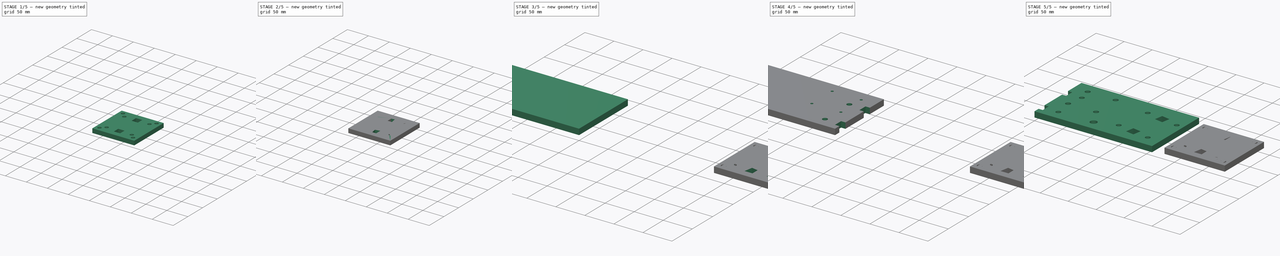
[diagram: build sequence overview — one tinted view per stage of 5, left to right]
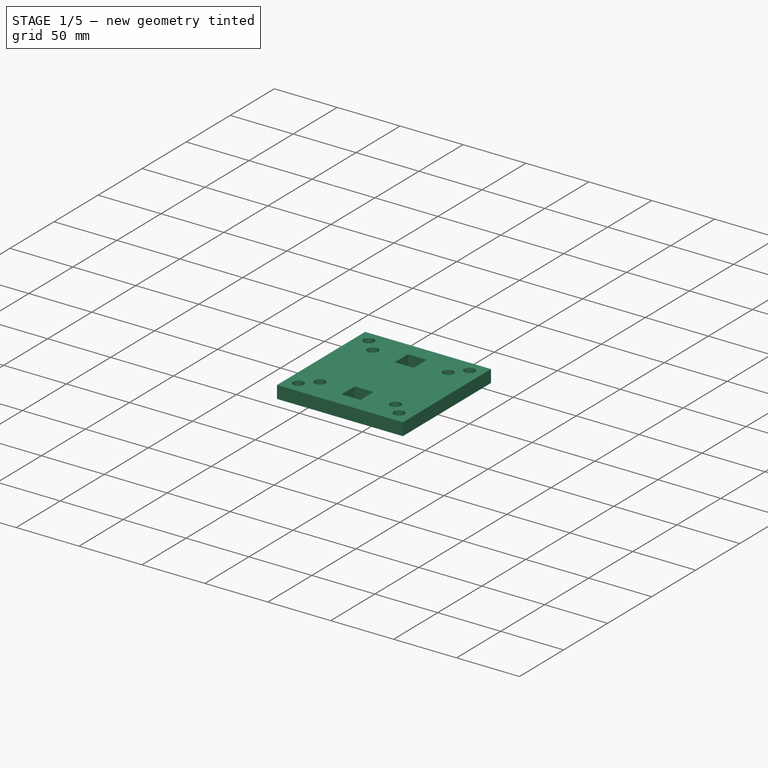
[diagram: stage 1 of 5 — iso view after this stage's code; geometry added in this stage tinted green]
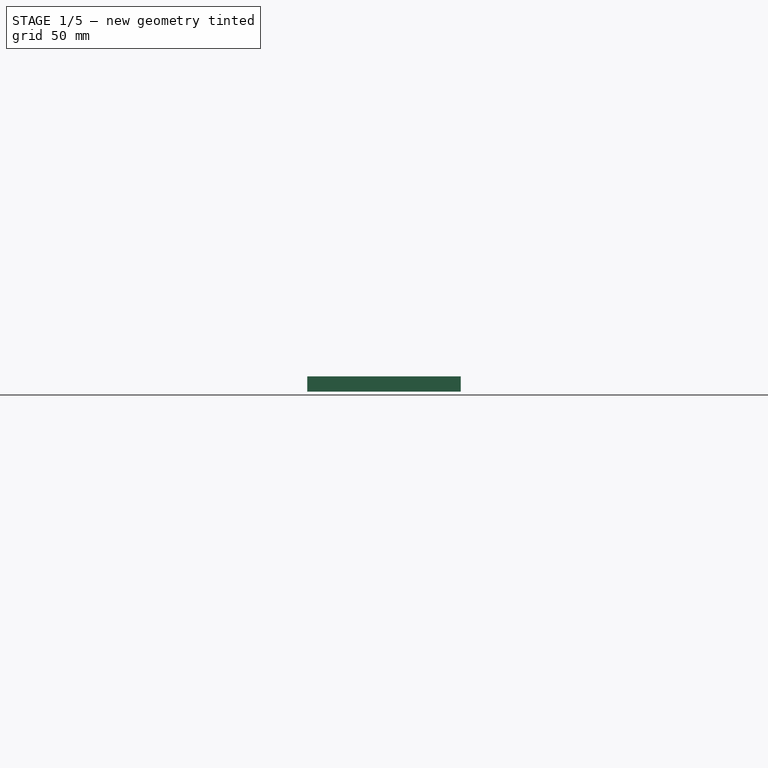
[diagram: stage 1 of 5 — front view after this stage's code; geometry added in this stage tinted green]
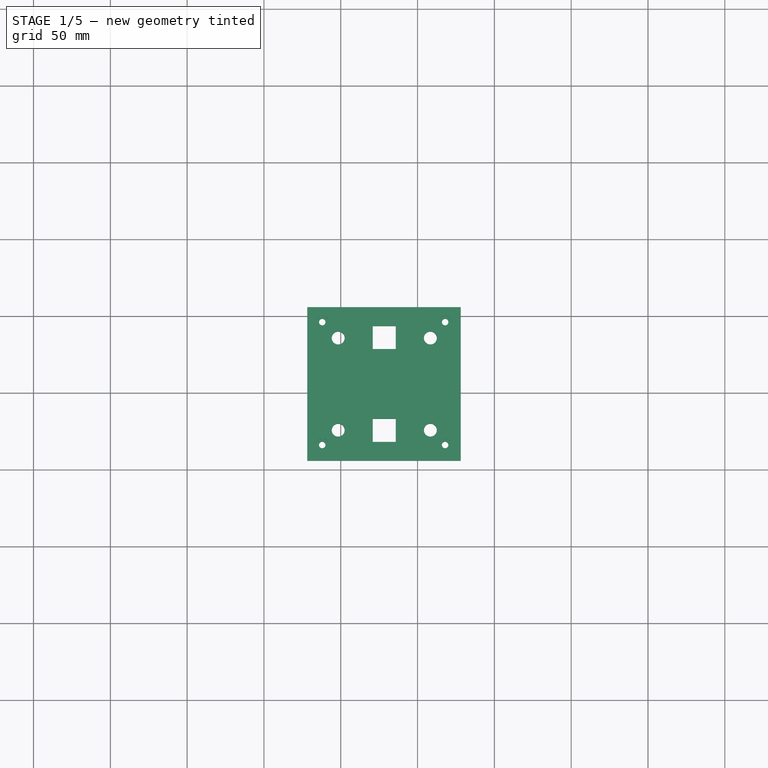
[diagram: stage 1 of 5 — top view after this stage's code; geometry added in this stage tinted green]
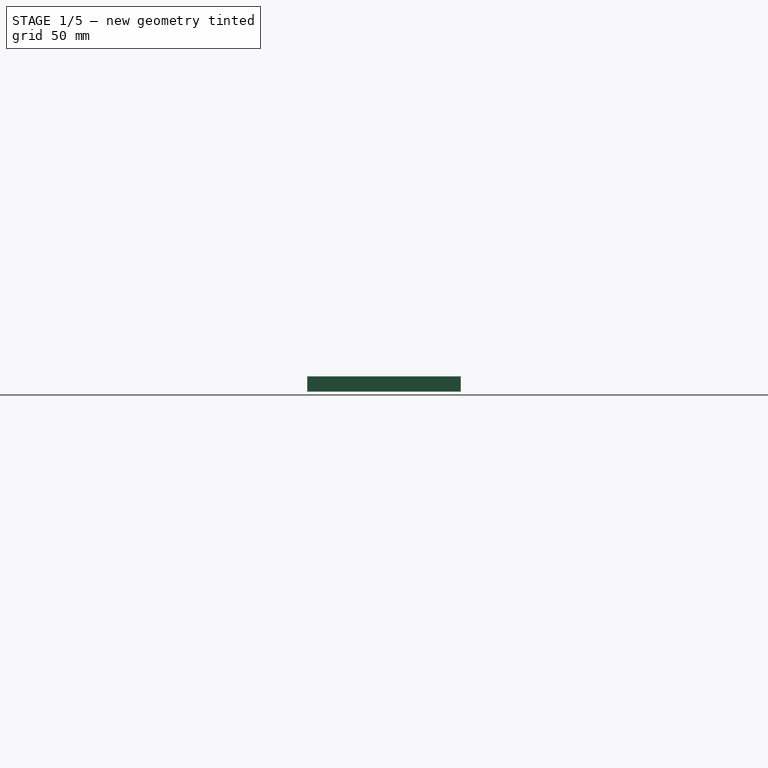
[diagram: stage 1 of 5 — right view after this stage's code; geometry added in this stage tinted green]
FCSTD DOCUMENT  (FreeCAD 0.21R33668 +26 (Git))
Label: YagiMount
License: All rights reserved
LicenseURL: https://en.wikipedia.org/wiki/All_rights_reserved
objects: Sketcher::SketchObject×18, PartDesign::Pocket×15, PartDesign::Pad×3, PartDesign::Body×3, Spreadsheet::Sheet×2, Part::Mirroring×2
note: 59 computed .brp shape members not serialized (recipe doc carries the construction recipe); baked Part::Feature solids carry a one-line shape summary decoded from their .brp

FEATURE [Sketcher::SketchObject] Sketch037
  FullyConstrained = false
  MapMode = 5
  Support = -> [XY_Plane002]
  sketch-geometry (4):
    g0: LineSegment StartX=228.149 StartY=105.911 StartZ=0 EndX=328.149 EndY=105.911 EndZ=0
    g1: LineSegment StartX=328.149 StartY=105.911 StartZ=0 EndX=328.149 EndY=5.91101 EndZ=0
    g2: LineSegment StartX=328.149 StartY=5.91101 StartZ=0 EndX=228.149 EndY=5.91101 EndZ=0
    g3: LineSegment StartX=228.149 StartY=5.91101 StartZ=0 EndX=228.149 EndY=105.911 EndZ=0
  constraints (10):
    c: Coincident(g0,g1)
    c: Coincident(g1,g2)
    c: Coincident(g2,g3)
    c: Coincident(g3,g0)
    c: Horizontal(g0)
    c: Horizontal(g2)
    c: Vertical(g1)
    c: Vertical(g3)
    c: DistanceX(g0,g0) = 100
    c: DistanceY(g1,g1) = 100
FEATURE [PartDesign::Pad] Pad002
  Direction = (0,0,1)
  Length = 10
  Length2 = 10
  Profile = -> Sketch037
  ReferenceAxis = -> Sketch037 [N_Axis]
  Type = 0
FEATURE [Sketcher::SketchObject] Sketch038
  FullyConstrained = false
  Placement = pos=(-36,-54,0) rot=(0,0,1;0rad)
  expr: Constraints[0] = Spreadsheet.hole_size
  expr: Constraints[18] = 15
  expr: Constraints[19] = 15
  expr: Constraints[1] = Spreadsheet.hole_size
  expr: Constraints[20] = Spreadsheet.hole_distance / 2 - 7.5
  expr: Constraints[2] = Spreadsheet.hole_size
  expr: Constraints[31] = Spreadsheet.hole_distance / 2 - 7.5
  expr: Constraints[3] = Spreadsheet.hole_size
  expr: Constraints[4] = Spreadsheet.hole_distance
  expr: Constraints[5] = Spreadsheet.hole_distance
  expr: Constraints[6] = Spreadsheet.hole_distance
  sketch-geometry (12):
    g0: Circle CenterX=284.333 CenterY=139.793 CenterZ=0 NormalX=0 NormalY=0 NormalZ=1 AngleXU=0 Radius=4.2
    g1: Circle CenterX=344.333 CenterY=139.793 CenterZ=0 NormalX=0 NormalY=0 NormalZ=1 AngleXU=0 Radius=4.2
    g2: Circle CenterX=284.333 CenterY=79.7934 CenterZ=0 NormalX=0 NormalY=0 NormalZ=1 AngleXU=0 Radius=4.2
    g3: Circle CenterX=344.333 CenterY=79.7934 CenterZ=0 NormalX=0 NormalY=0 NormalZ=1 AngleXU=0 Radius=4.2
    g4: LineSegment StartX=306.833 StartY=147.609 StartZ=0 EndX=321.833 EndY=147.609 EndZ=0
    g5: LineSegment StartX=321.833 StartY=147.609 StartZ=0 EndX=321.833 EndY=132.609 EndZ=0
    g6: LineSegment StartX=321.833 StartY=132.609 StartZ=0 EndX=306.833 EndY=132.609 EndZ=0
    g7: LineSegment StartX=306.833 StartY=132.609 StartZ=0 EndX=306.833 EndY=147.609 EndZ=0
    g8: LineSegment StartX=306.833 StartY=87.1752 StartZ=0 EndX=321.833 EndY=87.1752 EndZ=0
    g9: LineSegment StartX=321.833 StartY=87.1752 StartZ=0 EndX=321.833 EndY=72.1752 EndZ=0
    g10: LineSegment StartX=321.833 StartY=72.1752 StartZ=0 EndX=306.833 EndY=72.1752 EndZ=0
    g11: LineSegment StartX=306.833 StartY=72.1752 StartZ=0 EndX=306.833 EndY=87.1752 EndZ=0
  constraints (32):
    c: Diameter(g0) = 8.4
    c: Diameter(g1) = 8.4
    c: Diameter(g3) = 8.4
    c: Diameter(g2) = 8.4
    c: DistanceY(g2,g0) = 60
    c: DistanceX(g2,g3) = 60
    c: DistanceX(g0,g1) = 60
    c: DistanceX(g2,g0) = 0
    c: DistanceY(g2,g3) = 0
    c: DistanceY(g1,g0) = 0
    c: Coincident(g4,g5)
    c: Coincident(g5,g6)
    c: Coincident(g6,g7)
    c: Coincident(g7,g4)
    c: Horizontal(g4)
    c: Horizontal(g6)
    c: Vertical(g5)
    c: Vertical(g7)
    c: DistanceY(g7,g7) = 15
    c: DistanceX(g4,g4) = 15
    c: DistanceX(g0,g4) = 22.5
    c: Coincident(g8,g9)
    c: Coincident(g9,g10)
    c: Coincident(g10,g11)
    c: Coincident(g11,g8)
    c: Horizontal(g8)
    c: Horizontal(g10)
    c: Vertical(g9)
    c: Vertical(g11)
    c: DistanceX(g8,g8) = 15
    c: DistanceY(g11,g11) = 15
    c: DistanceX(g2,g8) = 22.5
FEATURE [Sketcher::SketchObject] Sketch039
  FullyConstrained = false
  Placement = pos=(-36,-54,0) rot=(0,0,1;0rad)
  expr: Constraints[0] = Spreadsheet.hole_size * 2
  expr: Constraints[1] = Spreadsheet.hole_size * 2
  expr: Constraints[2] = Spreadsheet.hole_size * 2
  expr: Constraints[3] = Spreadsheet.hole_size * 2
  expr: Constraints[4] = Spreadsheet.hole_distance
  expr: Constraints[5] = Spreadsheet.hole_distance
  expr: Constraints[6] = Spreadsheet.hole_distance
  sketch-geometry (4):
    g0: Circle CenterX=284.233 CenterY=139.769 CenterZ=0 NormalX=0 NormalY=0 NormalZ=1 AngleXU=0 Radius=8.4
    g1: Circle CenterX=344.233 CenterY=139.769 CenterZ=0 NormalX=0 NormalY=0 NormalZ=1 AngleXU=0 Radius=8.4
    g2: Circle CenterX=284.233 CenterY=79.7687 CenterZ=0 NormalX=0 NormalY=0 NormalZ=1 AngleXU=0 Radius=8.4
    g3: Circle CenterX=344.233 CenterY=79.7687 CenterZ=0 NormalX=0 NormalY=0 NormalZ=1 AngleXU=0 Radius=8.4
  constraints (10):
    c: Diameter(g0) = 16.8
    c: Diameter(g1) = 16.8
    c: Diameter(g3) = 16.8
    c: Diameter(g2) = 16.8
    c: DistanceY(g2,g0) = 60
    c: DistanceX(g2,g3) = 60
    c: DistanceX(g0,g1) = 60
    c: DistanceX(g2,g0) = 0
    c: DistanceY(g2,g3) = 0
    c: DistanceY(g1,g0) = 0
FEATURE [Sketcher::SketchObject] Sketch040
  FullyConstrained = false
  MapMode = 5
  Placement = pos=(0,0,10) rot=(0,0,1;0rad)
  sketch-geometry (4):
    g0: Circle CenterX=237.949 CenterY=96.2098 CenterZ=0 NormalX=0 NormalY=0 NormalZ=1 AngleXU=0 Radius=2.1
    g1: Circle CenterX=317.949 CenterY=96.2098 CenterZ=0 NormalX=0 NormalY=0 NormalZ=1 AngleXU=0 Radius=2.1
    g2: Circle CenterX=237.949 CenterY=16.2098 CenterZ=0 NormalX=0 NormalY=0 NormalZ=1 AngleXU=0 Radius=2.1
    g3: Circle CenterX=317.949 CenterY=16.2098 CenterZ=0 NormalX=0 NormalY=0 NormalZ=1 AngleXU=0 Radius=2.1
  constraints (10):
    c: Diameter(g0) = 4.2
    c: Diameter(g1) = 4.2
    c: Diameter(g2) = 4.2
    c: Diameter(g3) = 4.2
    c: DistanceY(g2,g0) = 80
    c: DistanceX(g2,g0) = 0
    c: DistanceX(g0,g1) = 80
    c: DistanceX(g2,g3) = 80
    c: DistanceY(g0,g1) = 0
    c: DistanceY(g2,g3) = 0
FEATURE [PartDesign::Pocket] Pocket026
  BaseFeature = -> Pad002
  Direction = (0,0,-1)
  Length = 10
  Length2 = 5
  Profile = -> Sketch040
  ReferenceAxis = -> Sketch040 [N_Axis]
  Type = 0
FEATURE [Sketcher::SketchObject] Sketch041
  FullyConstrained = false
  MapMode = 5
  Placement = pos=(0,0,10) rot=(0,0,1;0rad)
  Support = -> [Pocket026]
  sketch-geometry (4):
    g0: Circle CenterX=237.975 CenterY=96.1707 CenterZ=0 NormalX=0 NormalY=0 NormalZ=1 AngleXU=0 Radius=4.2
    g1: Circle CenterX=317.975 CenterY=96.1707 CenterZ=0 NormalX=0 NormalY=0 NormalZ=1 AngleXU=0 Radius=4.2
    g2: Circle CenterX=237.975 CenterY=16.1707 CenterZ=0 NormalX=0 NormalY=0 NormalZ=1 AngleXU=0 Radius=4.2
    g3: Circle CenterX=317.975 CenterY=16.1707 CenterZ=0 NormalX=0 NormalY=0 NormalZ=1 AngleXU=0 Radius=4.2
  constraints (10):
    c: Diameter(g0) = 8.4
    c: Diameter(g1) = 8.4
    c: Diameter(g3) = 8.4
    c: Diameter(g2) = 8.4
    c: DistanceY(g2,g0) = 80
    c: DistanceY(g3,g1) = 80
    c: DistanceY(g3,g2) = 0
    c: DistanceX(g2,g3) = 80
    c: DistanceX(g0,g1) = 80
    c: DistanceX(g0,g2) = 0
FEATURE [PartDesign::Pocket] Pocket027
  BaseFeature = -> Pocket026
  Direction = (0,0,-1)
  Length = 5
  Length2 = 5
  Profile = -> Sketch041
  ReferenceAxis = -> Sketch041 [N_Axis]
  Type = 0
FEATURE [PartDesign::Pocket] Pocket028
  BaseFeature = -> Pocket027
  Direction = (0,0,-1)
  Length = 10
  Length2 = 5
  Profile = -> Sketch038
  ReferenceAxis = -> Sketch038 [N_Axis]
  Reversed = true
  Type = 0
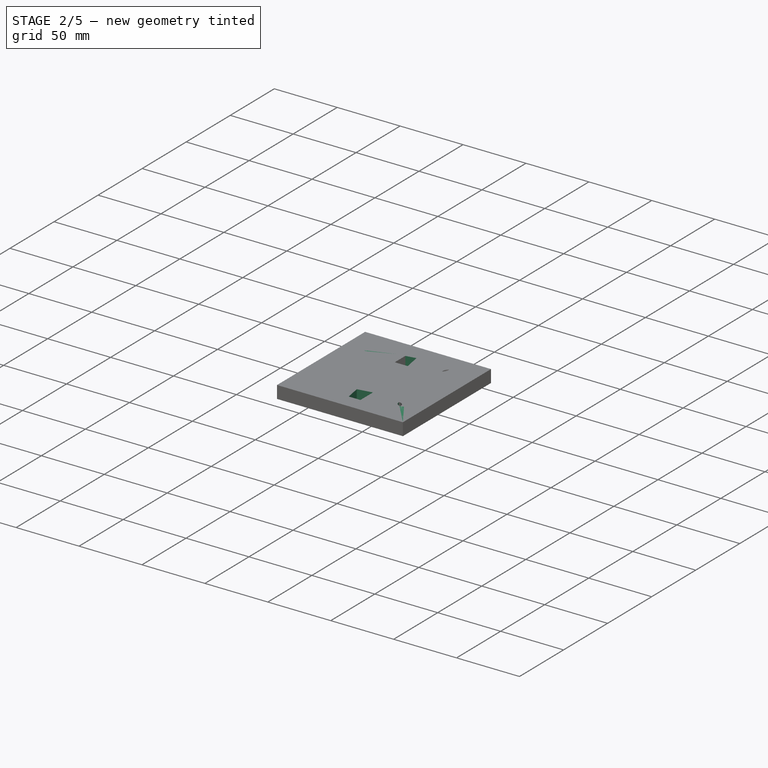
[diagram: stage 2 of 5 — iso view after this stage's code; geometry added in this stage tinted green]
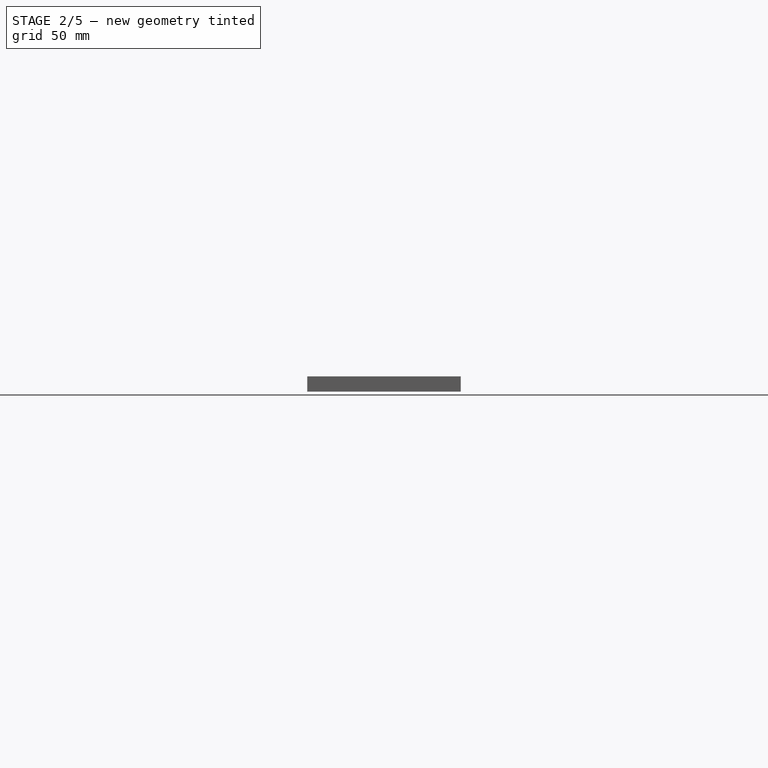
[diagram: stage 2 of 5 — front view after this stage's code; geometry added in this stage tinted green]
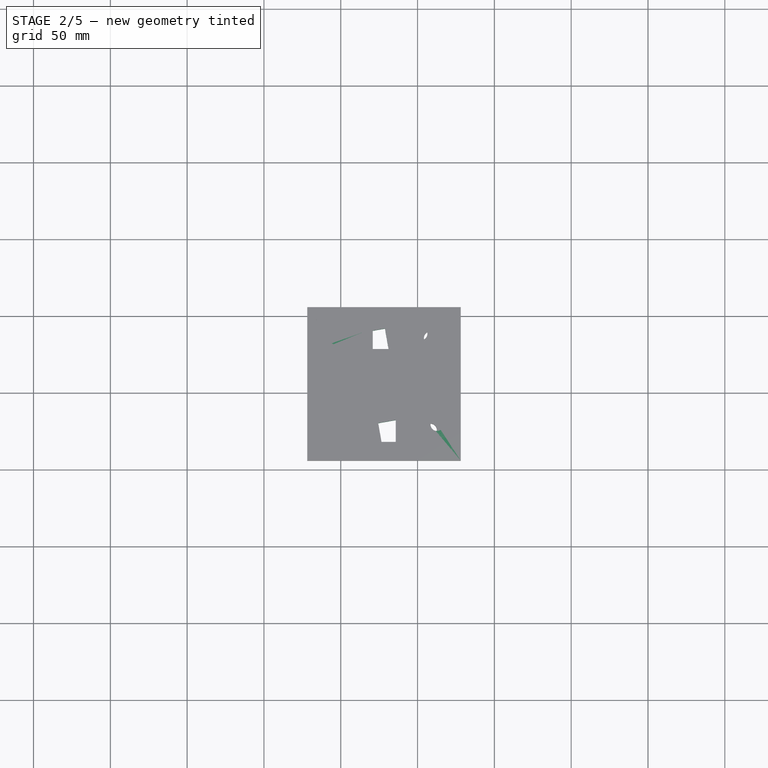
[diagram: stage 2 of 5 — top view after this stage's code; geometry added in this stage tinted green]
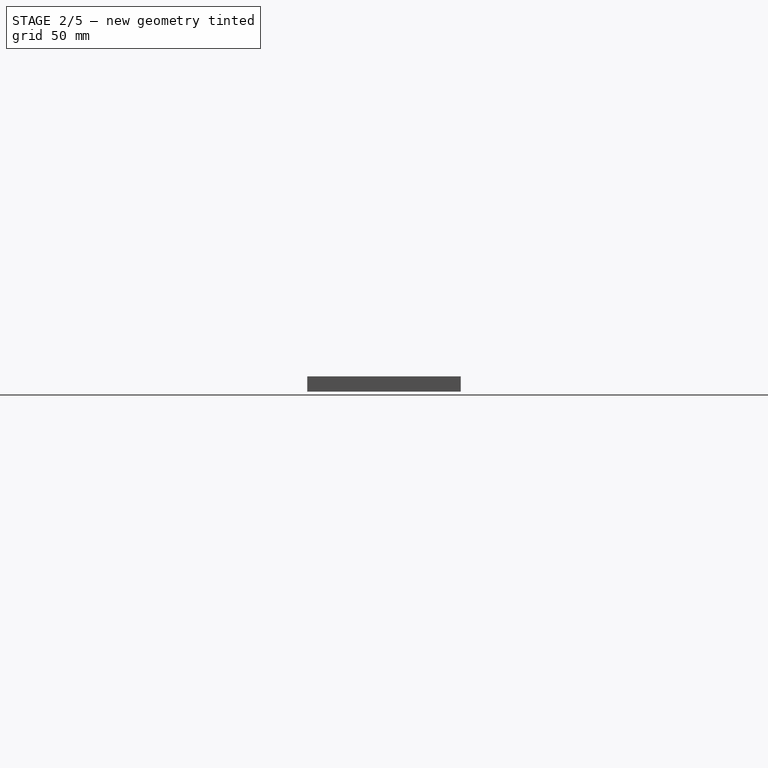
[diagram: stage 2 of 5 — right view after this stage's code; geometry added in this stage tinted green]
FEATURE [Sketcher::SketchObject] Sketch032
  FullyConstrained = false
  MapMode = 5
  Support = -> [XY_Plane001]
  sketch-geometry (4):
    g0: LineSegment StartX=228.149 StartY=105.911 StartZ=0 EndX=328.149 EndY=105.911 EndZ=0
    g1: LineSegment StartX=328.149 StartY=105.911 StartZ=0 EndX=328.149 EndY=5.91101 EndZ=0
    g2: LineSegment StartX=328.149 StartY=5.91101 StartZ=0 EndX=228.149 EndY=5.91101 EndZ=0
    g3: LineSegment StartX=228.149 StartY=5.91101 StartZ=0 EndX=228.149 EndY=105.911 EndZ=0
  constraints (10):
    c: Coincident(g0,g1)
    c: Coincident(g1,g2)
    c: Coincident(g2,g3)
    c: Coincident(g3,g0)
    c: Horizontal(g0)
    c: Horizontal(g2)
    c: Vertical(g1)
    c: Vertical(g3)
    c: DistanceX(g0,g0) = 100
    c: DistanceY(g1,g1) = 100
FEATURE [PartDesign::Pad] Pad001
  Direction = (0,0,1)
  Length = 10
  Length2 = 10
  Profile = -> Sketch032
  ReferenceAxis = -> Sketch032 [N_Axis]
  Type = 0
FEATURE [Sketcher::SketchObject] Sketch033
  FullyConstrained = false
  Placement = pos=(-36,-54,0) rot=(0,0,1;0.174533rad)
  expr: Constraints[0] = Spreadsheet.hole_size
  expr: Constraints[18] = 15
  expr: Constraints[19] = 15
  expr: Constraints[1] = Spreadsheet.hole_size
  expr: Constraints[20] = Spreadsheet.hole_distance / 2 - 7.5
  expr: Constraints[2] = Spreadsheet.hole_size
  expr: Constraints[31] = Spreadsheet.hole_distance / 2 - 7.5
  expr: Constraints[3] = Spreadsheet.hole_size
  expr: Constraints[4] = Spreadsheet.hole_distance
  expr: Constraints[5] = Spreadsheet.hole_distance
  expr: Constraints[6] = Spreadsheet.hole_distance
  sketch-geometry (12):
    g0: Circle CenterX=297.818 CenterY=81.6822 CenterZ=0 NormalX=0 NormalY=0 NormalZ=1 AngleXU=0 Radius=4.2
    g1: Circle CenterX=357.818 CenterY=81.6822 CenterZ=0 NormalX=0 NormalY=0 NormalZ=1 AngleXU=0 Radius=4.2
    g2: Circle CenterX=297.818 CenterY=21.6822 CenterZ=0 NormalX=0 NormalY=0 NormalZ=1 AngleXU=0 Radius=4.2
    g3: Circle CenterX=357.818 CenterY=21.6822 CenterZ=0 NormalX=0 NormalY=0 NormalZ=1 AngleXU=0 Radius=4.2
    g4: LineSegment StartX=320.318 StartY=89.0782 StartZ=0 EndX=335.318 EndY=89.0782 EndZ=0
    g5: LineSegment StartX=335.318 StartY=89.0782 StartZ=0 EndX=335.318 EndY=74.0782 EndZ=0
    g6: LineSegment StartX=335.318 StartY=74.0782 StartZ=0 EndX=320.318 EndY=74.0782 EndZ=0
    g7: LineSegment StartX=320.318 StartY=74.0782 StartZ=0 EndX=320.318 EndY=89.0782 EndZ=0
    g8: LineSegment StartX=320.318 StartY=29.1948 StartZ=0 EndX=335.318 EndY=29.1948 EndZ=0
    g9: LineSegment StartX=335.318 StartY=29.1948 StartZ=0 EndX=335.318 EndY=14.1948 EndZ=0
    g10: LineSegment StartX=335.318 StartY=14.1948 StartZ=0 EndX=320.318 EndY=14.1948 EndZ=0
    g11: LineSegment StartX=320.318 StartY=14.1948 StartZ=0 EndX=320.318 EndY=29.1948 EndZ=0
  constraints (32):
    c: Diameter(g0) = 8.4
    c: Diameter(g1) = 8.4
    c: Diameter(g3) = 8.4
    c: Diameter(g2) = 8.4
    c: DistanceY(g2,g0) = 60
    c: DistanceX(g2,g3) = 60
    c: DistanceX(g0,g1) = 60
    c: DistanceX(g2,g0) = 0
    c: DistanceY(g2,g3) = 0
    c: DistanceY(g1,g0) = 0
    c: Coincident(g4,g5)
    c: Coincident(g5,g6)
    c: Coincident(g6,g7)
    c: Coincident(g7,g4)
    c: Horizontal(g4)
    c: Horizontal(g6)
    c: Vertical(g5)
    c: Vertical(g7)
    c: DistanceY(g7,g7) = 15
    c: DistanceX(g4,g4) = 15
    c: DistanceX(g0,g4) = 22.5
    c: Coincident(g8,g9)
    c: Coincident(g9,g10)
    c: Coincident(g10,g11)
    c: Coincident(g11,g8)
    c: Horizontal(g8)
    c: Horizontal(g10)
    c: Vertical(g9)
    c: Vertical(g11)
    c: DistanceX(g8,g8) = 15
    c: DistanceY(g11,g11) = 15
    c: DistanceX(g2,g8) = 22.5
FEATURE [PartDesign::Pocket] Pocket020
  BaseFeature = -> Pad001
  Direction = (0,0,-1)
  Length = 10
  Length2 = 5
  Profile = -> Sketch033
  ReferenceAxis = -> Sketch033 [N_Axis]
  Reversed = true
  Type = 0
FEATURE [Sketcher::SketchObject] Sketch034
  FullyConstrained = false
  Placement = pos=(-36,-54,0) rot=(0,0,1;0.174533rad)
  expr: Constraints[0] = Spreadsheet.hole_size * 2
  expr: Constraints[1] = Spreadsheet.hole_size * 2
  expr: Constraints[2] = Spreadsheet.hole_size * 2
  expr: Constraints[3] = Spreadsheet.hole_size * 2
  expr: Constraints[4] = Spreadsheet.hole_distance
  expr: Constraints[5] = Spreadsheet.hole_distance
  expr: Constraints[6] = Spreadsheet.hole_distance
  sketch-geometry (4):
    g0: Circle CenterX=297.759 CenterY=81.5926 CenterZ=0 NormalX=0 NormalY=0 NormalZ=1 AngleXU=0 Radius=8.4
    g1: Circle CenterX=357.759 CenterY=81.5926 CenterZ=0 NormalX=0 NormalY=0 NormalZ=1 AngleXU=0 Radius=8.4
    g2: Circle CenterX=297.759 CenterY=21.5926 CenterZ=0 NormalX=0 NormalY=0 NormalZ=1 AngleXU=0 Radius=8.4
    g3: Circle CenterX=357.759 CenterY=21.5926 CenterZ=0 NormalX=0 NormalY=0 NormalZ=1 AngleXU=0 Radius=8.4
  constraints (10):
    c: Diameter(g0) = 16.8
    c: Diameter(g1) = 16.8
    c: Diameter(g3) = 16.8
    c: Diameter(g2) = 16.8
    c: DistanceY(g2,g0) = 60
    c: DistanceX(g2,g3) = 60
    c: DistanceX(g0,g1) = 60
    c: DistanceX(g2,g0) = 0
    c: DistanceY(g2,g3) = 0
    c: DistanceY(g1,g0) = 0
FEATURE [PartDesign::Pocket] Pocket021
  BaseFeature = -> Pocket020
  Direction = (0,0,-1)
  Length = 5
  Length2 = 5
  Profile = -> Sketch034
  ReferenceAxis = -> Sketch034 [N_Axis]
  Reversed = true
  Type = 0
FEATURE [PartDesign::Pocket] Pocket029
  BaseFeature = -> Pocket028
  Direction = (0,0,-1)
  Length = 5
  Length2 = 5
  Profile = -> Sketch039
  ReferenceAxis = -> Sketch039 [N_Axis]
  Reversed = true
  Type = 0
FEATURE [PartDesign::Body] Body002
  Group = -> [Sketch037,Pad002,Sketch038,Sketch039,Sketch040,Pocket026,Sketch041,Pocket027,Pocket028,Pocket029]
  Origin = -> Origin002
  Placement = pos=(-283,128,0) rot=(0,0,1;0rad)
  Tip = -> Pocket029
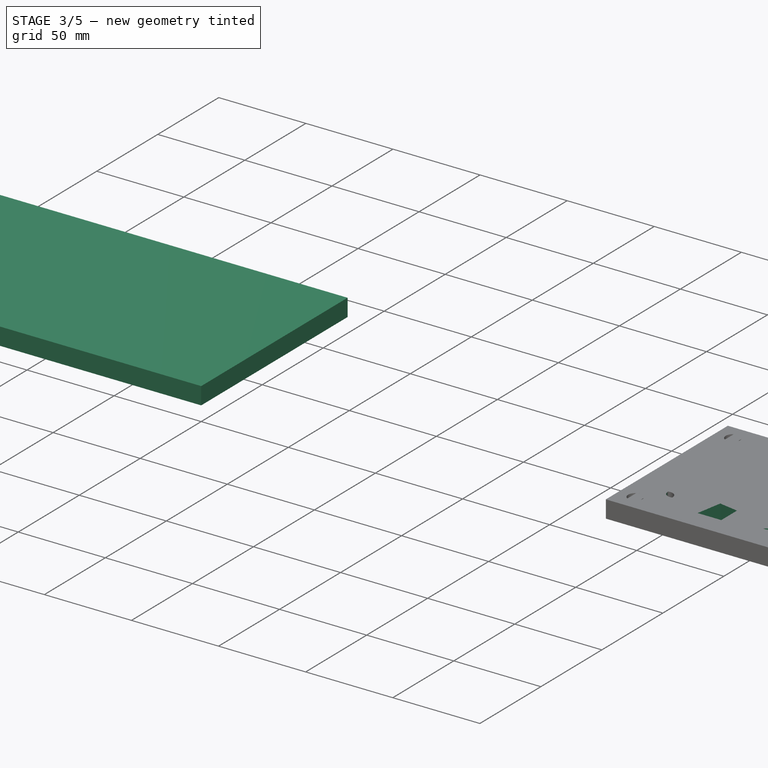
[diagram: stage 3 of 5 — iso view after this stage's code; geometry added in this stage tinted green]
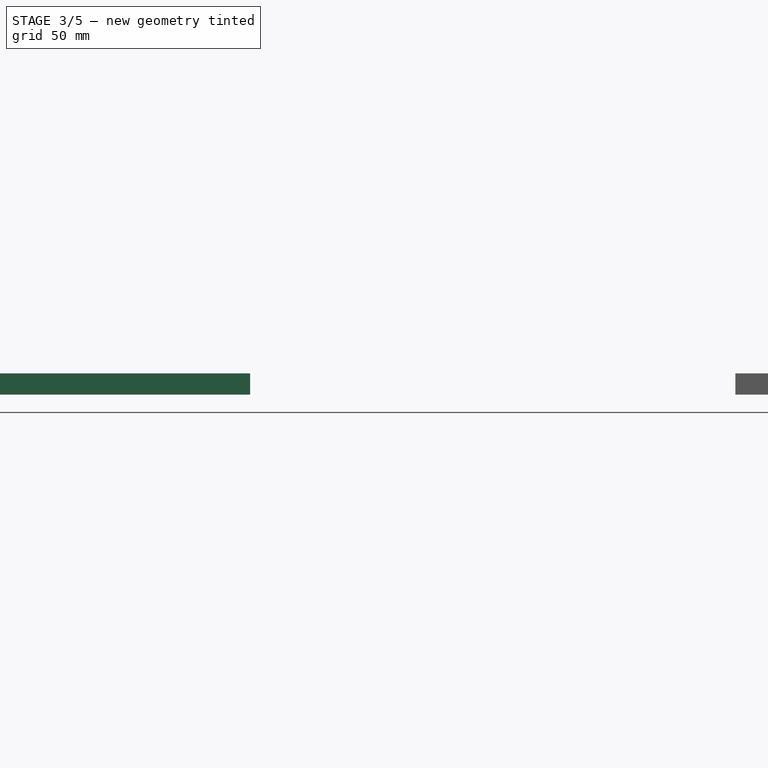
[diagram: stage 3 of 5 — front view after this stage's code; geometry added in this stage tinted green]
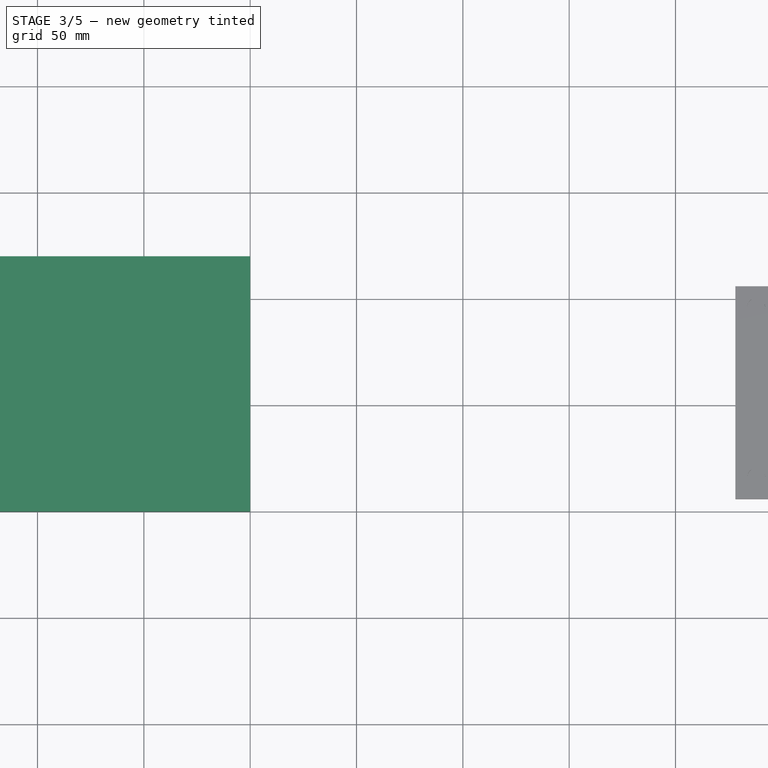
[diagram: stage 3 of 5 — top view after this stage's code; geometry added in this stage tinted green]
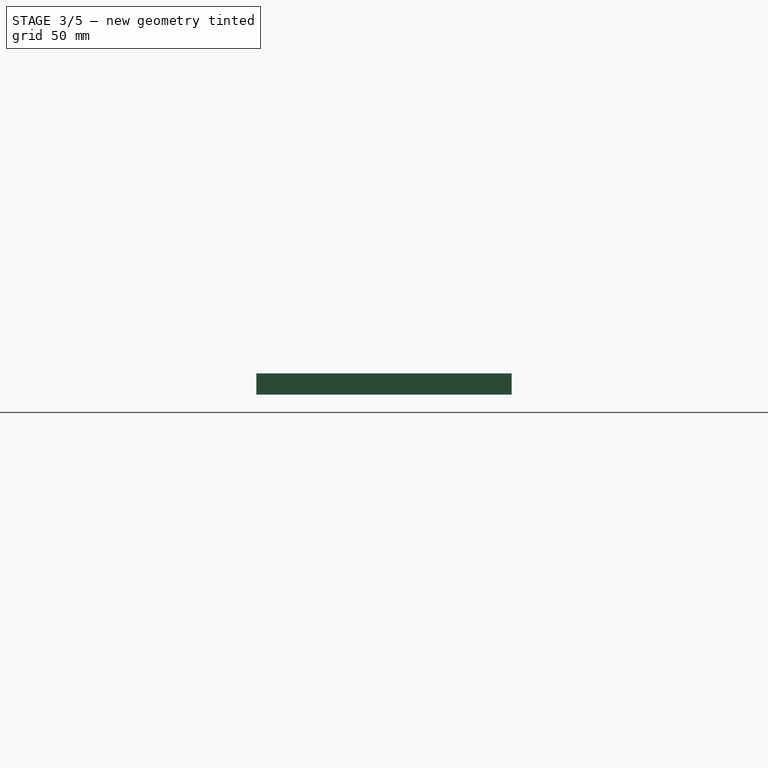
[diagram: stage 3 of 5 — right view after this stage's code; geometry added in this stage tinted green]
FEATURE [Sketcher::SketchObject] Sketch
  FullyConstrained = true
  MapMode = 5
  Support = -> [XY_Plane]
  expr: Constraints[9] = 120
  sketch-geometry (4):
    g0: LineSegment StartX=-210 StartY=120 StartZ=0 EndX=0 EndY=120 EndZ=0
    g1: LineSegment StartX=0 StartY=120 StartZ=0 EndX=0 EndY=0 EndZ=0
    g2: LineSegment StartX=0 StartY=0 StartZ=0 EndX=-210 EndY=0 EndZ=0
    g3: LineSegment StartX=-210 StartY=0 StartZ=0 EndX=-210 EndY=120 EndZ=0
  constraints (11):
    c: Coincident(g0,g1)
    c: Coincident(g1,g2)
    c: Coincident(g2,g3)
    c: Coincident(g3,g0)
    c: Horizontal(g0)
    c: Horizontal(g2)
    c: Vertical(g1)
    c: Vertical(g3)
    c: Coincident(g1,g-1)
    c: DistanceY(g3,g3) = 120
    c: DistanceX(g0,g0) = 210
FEATURE [PartDesign::Pad] Pad
  Direction = (0,0,1)
  Length = 10
  Length2 = 10
  Profile = -> Sketch
  ReferenceAxis = -> Sketch [N_Axis]
  Type = 0
FEATURE [Sketcher::SketchObject] Sketch035
  FullyConstrained = false
  MapMode = 5
  Placement = pos=(0,0,10) rot=(0,0,1;0rad)
  Support = -> [Pocket021]
  sketch-geometry (4):
    g0: Circle CenterX=237.949 CenterY=96.2098 CenterZ=0 NormalX=0 NormalY=0 NormalZ=1 AngleXU=0 Radius=2.1
    g1: Circle CenterX=317.949 CenterY=96.2098 CenterZ=0 NormalX=0 NormalY=0 NormalZ=1 AngleXU=0 Radius=2.1
    g2: Circle CenterX=237.949 CenterY=16.2098 CenterZ=0 NormalX=0 NormalY=0 NormalZ=1 AngleXU=0 Radius=2.1
    g3: Circle CenterX=317.949 CenterY=16.2098 CenterZ=0 NormalX=0 NormalY=0 NormalZ=1 AngleXU=0 Radius=2.1
  constraints (10):
    c: Diameter(g0) = 4.2
    c: Diameter(g1) = 4.2
    c: Diameter(g2) = 4.2
    c: Diameter(g3) = 4.2
    c: DistanceY(g2,g0) = 80
    c: DistanceX(g2,g0) = 0
    c: DistanceX(g0,g1) = 80
    c: DistanceX(g2,g3) = 80
    c: DistanceY(g0,g1) = 0
    c: DistanceY(g2,g3) = 0
FEATURE [PartDesign::Pocket] Pocket022
  BaseFeature = -> Pocket021
  Direction = (0,0,-1)
  Length = 10
  Length2 = 5
  Profile = -> Sketch035
  ReferenceAxis = -> Sketch035 [N_Axis]
  Type = 0
FEATURE [Sketcher::SketchObject] Sketch036
  FullyConstrained = false
  MapMode = 5
  Placement = pos=(0,0,10) rot=(0,0,1;0rad)
  Support = -> [Pocket022]
  sketch-geometry (4):
    g0: Circle CenterX=237.975 CenterY=96.1707 CenterZ=0 NormalX=0 NormalY=0 NormalZ=1 AngleXU=0 Radius=4.2
    g1: Circle CenterX=317.975 CenterY=96.1707 CenterZ=0 NormalX=0 NormalY=0 NormalZ=1 AngleXU=0 Radius=4.2
    g2: Circle CenterX=237.975 CenterY=16.1707 CenterZ=0 NormalX=0 NormalY=0 NormalZ=1 AngleXU=0 Radius=4.2
    g3: Circle CenterX=317.975 CenterY=16.1707 CenterZ=0 NormalX=0 NormalY=0 NormalZ=1 AngleXU=0 Radius=4.2
  constraints (10):
    c: Diameter(g0) = 8.4
    c: Diameter(g1) = 8.4
    c: Diameter(g3) = 8.4
    c: Diameter(g2) = 8.4
    c: DistanceY(g2,g0) = 80
    c: DistanceY(g3,g1) = 80
    c: DistanceY(g3,g2) = 0
    c: DistanceX(g2,g3) = 80
    c: DistanceX(g0,g1) = 80
    c: DistanceX(g0,g2) = 0
FEATURE [PartDesign::Pocket] Pocket023
  BaseFeature = -> Pocket022
  Direction = (0,0,-1)
  Length = 5
  Length2 = 5
  Profile = -> Sketch036
  ReferenceAxis = -> Sketch036 [N_Axis]
  Type = 0
FEATURE [PartDesign::Body] Body001
  Group = -> [Sketch032,Pad001,Sketch033,Pocket020,Sketch034,Pocket021,Sketch035,Pocket022,Sketch036,Pocket023]
  Origin = -> Origin001
  Placement = pos=(-564,0,0) rot=(0,0,1;0rad)
  Tip = -> Pocket023
FEATURE [Part::Mirroring] Part__Mirroring001  label="Body001 (Mirror #2)"
  Base = (0,0,0)
  Normal = (1,0,0)
  Source = -> Body001
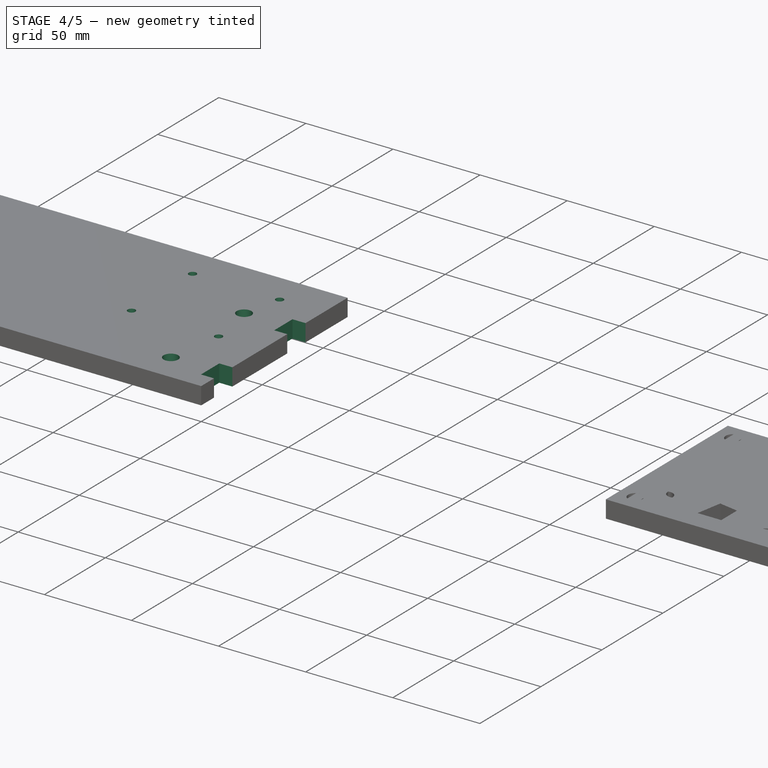
[diagram: stage 4 of 5 — iso view after this stage's code; geometry added in this stage tinted green]
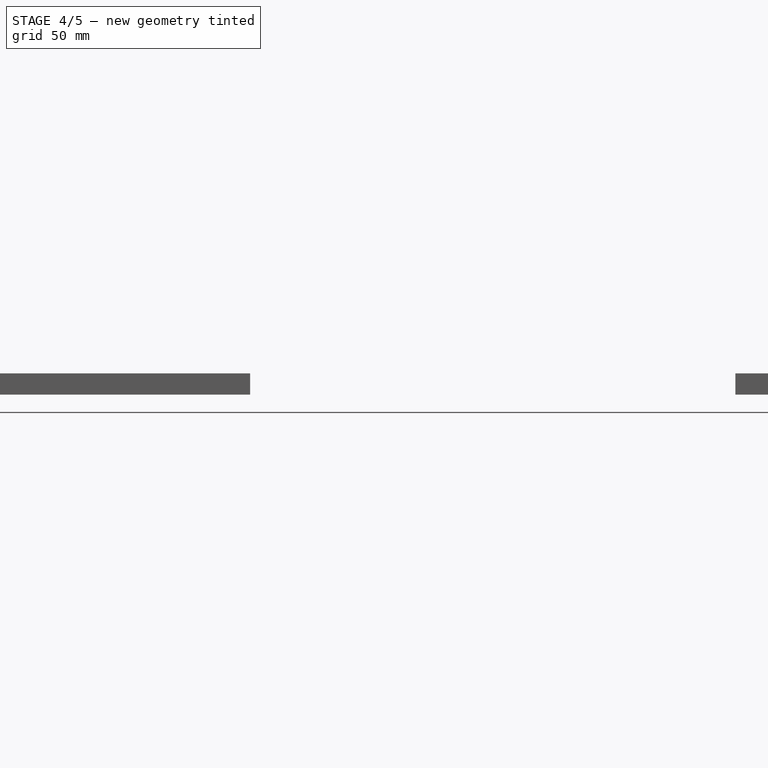
[diagram: stage 4 of 5 — front view after this stage's code; geometry added in this stage tinted green]
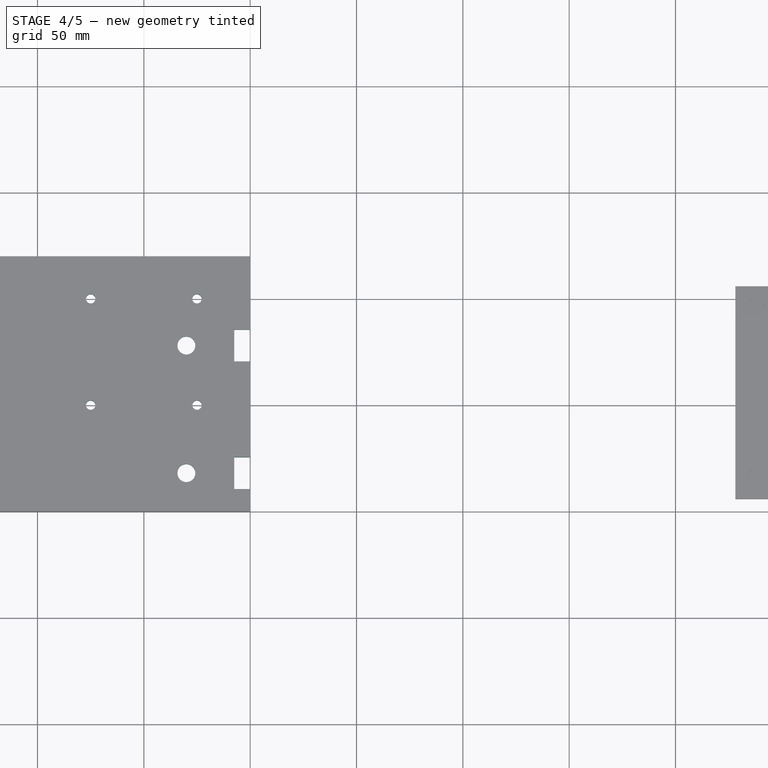
[diagram: stage 4 of 5 — top view after this stage's code; geometry added in this stage tinted green]
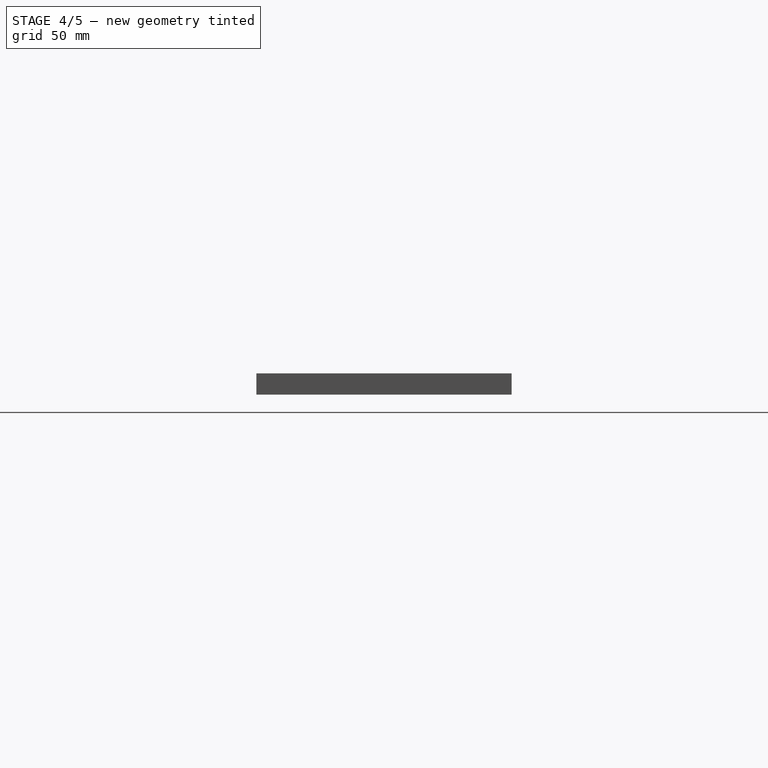
[diagram: stage 4 of 5 — right view after this stage's code; geometry added in this stage tinted green]
FEATURE [Spreadsheet::Sheet] Spreadsheet
  cells = A1='hole_distance; B1(hole_distance)=60; A2='hole_size; B2(hole_size)=8.4; A3='antenna_distance; B3(antenna_distance)=100
FEATURE [Sketcher::SketchObject] Sketch001
  FullyConstrained = false
  Placement = pos=(-36,-54,0) rot=(0,0,1;0.174533rad)
  expr: Constraints[0] = Spreadsheet.hole_size
  expr: Constraints[18] = 15
  expr: Constraints[19] = 15
  expr: Constraints[1] = Spreadsheet.hole_size
  expr: Constraints[20] = Spreadsheet.hole_distance / 2 - 7.5
  expr: Constraints[2] = Spreadsheet.hole_size
  expr: Constraints[31] = Spreadsheet.hole_distance / 2 - 7.5
  expr: Constraints[3] = Spreadsheet.hole_size
  expr: Constraints[4] = Spreadsheet.hole_distance
  expr: Constraints[5] = Spreadsheet.hole_distance
  expr: Constraints[6] = Spreadsheet.hole_distance
  sketch-geometry (12):
    g0: Circle CenterX=-136.493 CenterY=159.996 CenterZ=0 NormalX=0 NormalY=0 NormalZ=1 AngleXU=0 Radius=4.2
    g1: Circle CenterX=-76.4933 CenterY=159.996 CenterZ=0 NormalX=0 NormalY=0 NormalZ=1 AngleXU=0 Radius=4.2
    g2: Circle CenterX=-136.493 CenterY=99.9959 CenterZ=0 NormalX=0 NormalY=0 NormalZ=1 AngleXU=0 Radius=4.2
    g3: Circle CenterX=-76.4933 CenterY=99.9959 CenterZ=0 NormalX=0 NormalY=0 NormalZ=1 AngleXU=0 Radius=4.2
    g4: LineSegment StartX=-113.993 StartY=167.407 StartZ=0 EndX=-98.9933 EndY=167.407 EndZ=0
    g5: LineSegment StartX=-98.9933 StartY=167.407 StartZ=0 EndX=-98.9933 EndY=152.407 EndZ=0
    g6: LineSegment StartX=-98.9933 StartY=152.407 StartZ=0 EndX=-113.993 EndY=152.407 EndZ=0
    g7: LineSegment StartX=-113.993 StartY=152.407 StartZ=0 EndX=-113.993 EndY=167.407 EndZ=0
    g8: LineSegment StartX=-113.993 StartY=107.685 StartZ=0 EndX=-98.9933 EndY=107.685 EndZ=0
    g9: LineSegment StartX=-98.9933 StartY=107.685 StartZ=0 EndX=-98.9933 EndY=92.6854 EndZ=0
    g10: LineSegment StartX=-98.9933 StartY=92.6854 StartZ=0 EndX=-113.993 EndY=92.6854 EndZ=0
    g11: LineSegment StartX=-113.993 StartY=92.6854 StartZ=0 EndX=-113.993 EndY=107.685 EndZ=0
  constraints (32):
    c: Diameter(g0) = 8.4
    c: Diameter(g1) = 8.4
    c: Diameter(g3) = 8.4
    c: Diameter(g2) = 8.4
    c: DistanceY(g2,g0) = 60
    c: DistanceX(g2,g3) = 60
    c: DistanceX(g0,g1) = 60
    c: DistanceX(g2,g0) = 0
    c: DistanceY(g2,g3) = 0
    c: DistanceY(g1,g0) = 0
    c: Coincident(g4,g5)
    c: Coincident(g5,g6)
    c: Coincident(g6,g7)
    c: Coincident(g7,g4)
    c: Horizontal(g4)
    c: Horizontal(g6)
    c: Vertical(g5)
    c: Vertical(g7)
    c: DistanceY(g7,g7) = 15
    c: DistanceX(g4,g4) = 15
    c: DistanceX(g0,g4) = 22.5
    c: Coincident(g8,g9)
    c: Coincident(g9,g10)
    c: Coincident(g10,g11)
    c: Coincident(g11,g8)
    c: Horizontal(g8)
    c: Horizontal(g10)
    c: Vertical(g9)
    c: Vertical(g11)
    c: DistanceX(g8,g8) = 15
    c: DistanceY(g11,g11) = 15
    c: DistanceX(g2,g8) = 22.5
FEATURE [Sketcher::SketchObject] Sketch002
  FullyConstrained = false
  expr: Constraints[0] = Spreadsheet.hole_size
  expr: Constraints[18] = 15
  expr: Constraints[19] = 15
  expr: Constraints[1] = Spreadsheet.hole_size
  expr: Constraints[20] = Spreadsheet.hole_distance / 2 - 7.5
  expr: Constraints[2] = Spreadsheet.hole_size
  expr: Constraints[31] = Spreadsheet.hole_distance / 2 - 7.5
  expr: Constraints[32] = 18
  expr: Constraints[33] = Spreadsheet.hole_distance / 2
  expr: Constraints[3] = Spreadsheet.hole_size
  expr: Constraints[4] = Spreadsheet.hole_distance
  expr: Constraints[5] = Spreadsheet.hole_distance
  expr: Constraints[6] = Spreadsheet.hole_distance
  sketch-geometry (12):
    g0: Circle CenterX=-30 CenterY=78 CenterZ=0 NormalX=0 NormalY=0 NormalZ=1 AngleXU=0 Radius=4.2
    g1: Circle CenterX=30 CenterY=78 CenterZ=0 NormalX=0 NormalY=0 NormalZ=1 AngleXU=0 Radius=4.2
    g2: Circle CenterX=-30 CenterY=18 CenterZ=0 NormalX=0 NormalY=0 NormalZ=1 AngleXU=0 Radius=4.2
    g3: Circle CenterX=30 CenterY=18 CenterZ=0 NormalX=0 NormalY=0 NormalZ=1 AngleXU=0 Radius=4.2
    g4: LineSegment StartX=-7.5 StartY=85.5388 StartZ=0 EndX=7.5 EndY=85.5388 EndZ=0
    g5: LineSegment StartX=7.5 StartY=85.5388 StartZ=0 EndX=7.5 EndY=70.5388 EndZ=0
    g6: LineSegment StartX=7.5 StartY=70.5388 StartZ=0 EndX=-7.5 EndY=70.5388 EndZ=0
    g7: LineSegment StartX=-7.5 StartY=70.5388 StartZ=0 EndX=-7.5 EndY=85.5388 EndZ=0
    g8: LineSegment StartX=-7.5 StartY=25.5361 StartZ=0 EndX=7.5 EndY=25.5361 EndZ=0
    g9: LineSegment StartX=7.5 StartY=25.5361 StartZ=0 EndX=7.5 EndY=10.5361 EndZ=0
    g10: LineSegment StartX=7.5 StartY=10.5361 StartZ=0 EndX=-7.5 EndY=10.5361 EndZ=0
    g11: LineSegment StartX=-7.5 StartY=10.5361 StartZ=0 EndX=-7.5 EndY=25.5361 EndZ=0
  constraints (34):
    c: Diameter(g0) = 8.4
    c: Diameter(g1) = 8.4
    c: Diameter(g3) = 8.4
    c: Diameter(g2) = 8.4
    c: DistanceY(g2,g0) = 60
    c: DistanceX(g2,g3) = 60
    c: DistanceX(g0,g1) = 60
    c: DistanceX(g2,g0) = 0
    c: DistanceY(g2,g3) = 0
    c: DistanceY(g1,g0) = 0
    c: Coincident(g4,g5)
    c: Coincident(g5,g6)
    c: Coincident(g6,g7)
    c: Coincident(g7,g4)
    c: Horizontal(g4)
    c: Horizontal(g6)
    c: Vertical(g5)
    c: Vertical(g7)
    c: DistanceY(g7,g7) = 15
    c: DistanceX(g4,g4) = 15
    c: DistanceX(g0,g4) = 22.5
    c: Coincident(g8,g9)
    c: Coincident(g9,g10)
    c: Coincident(g10,g11)
    c: Coincident(g11,g8)
    c: Horizontal(g8)
    c: Horizontal(g10)
    c: Vertical(g9)
    c: Vertical(g11)
    c: DistanceX(g8,g8) = 15
    c: DistanceY(g11,g11) = 15
    c: DistanceX(g2,g8) = 22.5
    c: DistanceY(g-1,g2) = 18
    c: DistanceX(g2,g-1) = 30
FEATURE [PartDesign::Pocket] Pocket001
  BaseFeature = -> Pad
  Direction = (0,0,-1)
  Length = 10
  Length2 = 5
  Profile = -> Sketch002
  ReferenceAxis = -> Sketch002 [N_Axis]
  Reversed = true
  Type = 0
  expr: Length = 10
FEATURE [Sketcher::SketchObject] Sketch003
  FullyConstrained = false
  Placement = pos=(-36,-54,0) rot=(0,0,1;0.174533rad)
  expr: Constraints[0] = Spreadsheet.hole_size * 2
  expr: Constraints[1] = Spreadsheet.hole_size * 2
  expr: Constraints[2] = Spreadsheet.hole_size * 2
  expr: Constraints[3] = Spreadsheet.hole_size * 2
  expr: Constraints[4] = Spreadsheet.hole_distance
  expr: Constraints[5] = Spreadsheet.hole_distance
  expr: Constraints[6] = Spreadsheet.hole_distance
  sketch-geometry (4):
    g0: Circle CenterX=-136.493 CenterY=159.996 CenterZ=0 NormalX=0 NormalY=0 NormalZ=1 AngleXU=0 Radius=8.4
    g1: Circle CenterX=-76.4933 CenterY=159.996 CenterZ=0 NormalX=0 NormalY=0 NormalZ=1 AngleXU=0 Radius=8.4
    g2: Circle CenterX=-136.493 CenterY=99.9959 CenterZ=0 NormalX=0 NormalY=0 NormalZ=1 AngleXU=0 Radius=8.4
    g3: Circle CenterX=-76.4933 CenterY=99.9959 CenterZ=0 NormalX=0 NormalY=0 NormalZ=1 AngleXU=0 Radius=8.4
  constraints (10):
    c: Diameter(g0) = 16.8
    c: Diameter(g1) = 16.8
    c: Diameter(g3) = 16.8
    c: Diameter(g2) = 16.8
    c: DistanceY(g2,g0) = 60
    c: DistanceX(g2,g3) = 60
    c: DistanceX(g0,g1) = 60
    c: DistanceX(g2,g0) = 0
    c: DistanceY(g2,g3) = 0
    c: DistanceY(g1,g0) = 0
FEATURE [PartDesign::Pocket] Pocket002
  BaseFeature = -> Pocket001
  Direction = (0,0,-1)
  Length = 5
  Length2 = 5
  Profile = -> Sketch003
  ReferenceAxis = -> Sketch003 [N_Axis]
  Reversed = true
  Type = 0
FEATURE [Sketcher::SketchObject] Sketch004
  FullyConstrained = true
  expr: Constraints[0] = Spreadsheet.hole_size * 2
  expr: Constraints[1] = Spreadsheet.hole_size * 2
  expr: Constraints[2] = Spreadsheet.hole_distance
  expr: Constraints[4] = 18
  expr: Constraints[5] = Spreadsheet.hole_distance / 2
  sketch-geometry (2):
    g0: Circle CenterX=-30 CenterY=78 CenterZ=0 NormalX=0 NormalY=0 NormalZ=1 AngleXU=0 Radius=8.4
    g1: Circle CenterX=-30 CenterY=18 CenterZ=0 NormalX=0 NormalY=0 NormalZ=1 AngleXU=0 Radius=8.4
  constraints (6):
    c: Diameter(g0) = 16.8
    c: Diameter(g1) = 16.8
    c: DistanceY(g1,g0) = 60
    c: DistanceX(g1,g0) = 0
    c: DistanceY(g-1,g1) = 18
    c: DistanceX(g1,g-1) = 30
FEATURE [PartDesign::Pocket] Pocket003
  BaseFeature = -> Pocket002
  Direction = (0,0,-1)
  Length = 5
  Length2 = 5
  Profile = -> Sketch004
  ReferenceAxis = -> Sketch004 [N_Axis]
  Reversed = true
  Type = 0
FEATURE [Sketcher::SketchObject] Sketch005
  FullyConstrained = true
  MapMode = 5
  Placement = pos=(0,0,10) rot=(0,0,1;0rad)
  Support = -> [Pocket003]
  sketch-geometry (4):
    g0: Circle CenterX=-25 CenterY=50 CenterZ=0 NormalX=0 NormalY=0 NormalZ=1 AngleXU=0 Radius=2.2
    g1: Circle CenterX=-25 CenterY=100 CenterZ=0 NormalX=0 NormalY=0 NormalZ=1 AngleXU=0 Radius=2.2
    g2: Circle CenterX=-75 CenterY=100 CenterZ=0 NormalX=0 NormalY=0 NormalZ=1 AngleXU=0 Radius=2.2
    g3: Circle CenterX=-75 CenterY=50 CenterZ=0 NormalX=0 NormalY=0 NormalZ=1 AngleXU=0 Radius=2.2
  constraints (12):
    c: DistanceY(g0,g1) = 50
    c: DistanceX(g0,g-1) = 25
    c: DistanceX(g1,g-1) = 25
    c: Diameter(g1) = 4.4
    c: Diameter(g0) = 4.4
    c: DistanceY(g-1,g0) = 50
    c: Diameter(g2) = 4.4
    c: Diameter(g3) = 4.4
    c: DistanceX(g2,g1) = 50
    c: DistanceX(g3,g0) = 50
    c: DistanceY(g1,g2) = 0
    c: DistanceY(g0,g3) = 0
FEATURE [PartDesign::Pocket] Pocket004
  BaseFeature = -> Pocket003
  Direction = (0,0,-1)
  Length = 10
  Length2 = 5
  Profile = -> Sketch005
  ReferenceAxis = -> Sketch005 [N_Axis]
  Type = 0
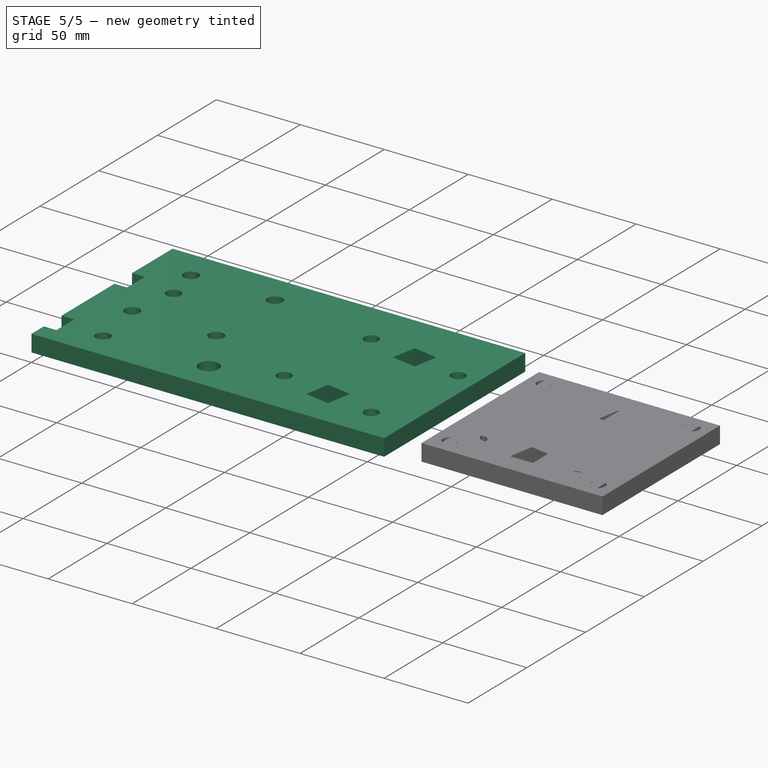
[diagram: stage 5 of 5 — iso view after this stage's code; geometry added in this stage tinted green]
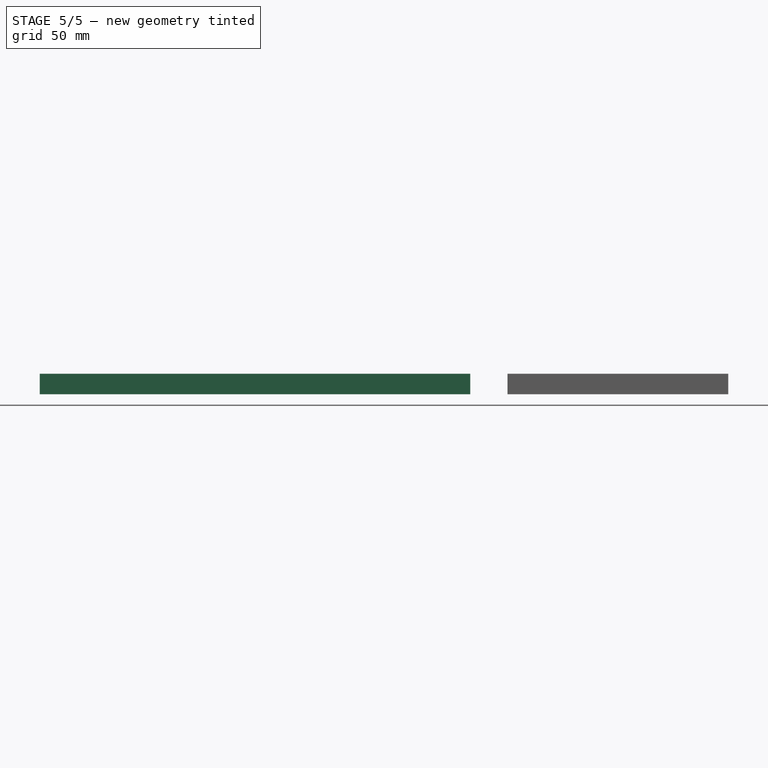
[diagram: stage 5 of 5 — front view after this stage's code; geometry added in this stage tinted green]
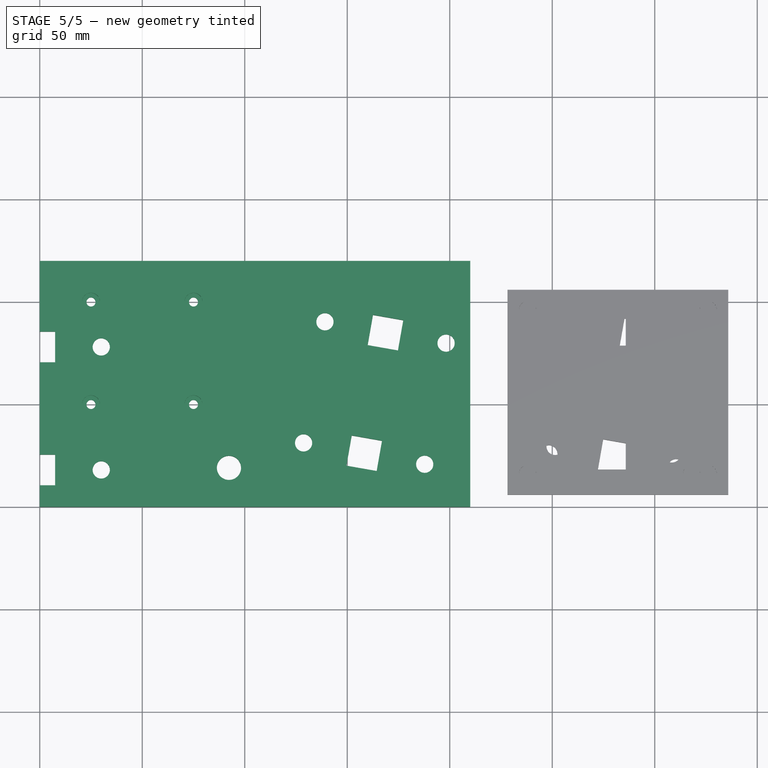
[diagram: stage 5 of 5 — top view after this stage's code; geometry added in this stage tinted green]
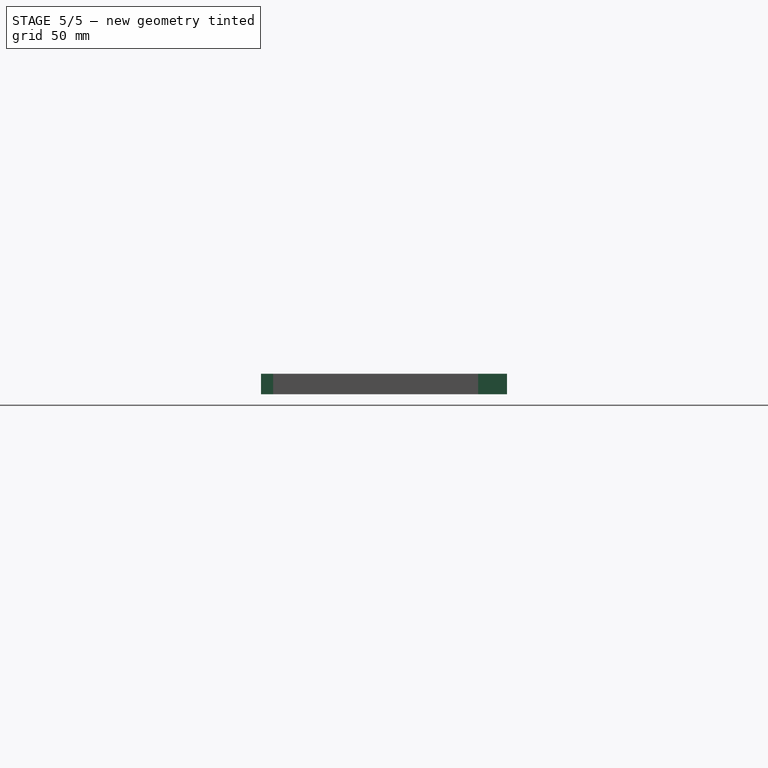
[diagram: stage 5 of 5 — right view after this stage's code; geometry added in this stage tinted green]
FEATURE [Sketcher::SketchObject] Sketch006
  FullyConstrained = true
  MapMode = 5
  Placement = pos=(0,0,10) rot=(0,0,1;0rad)
  Support = -> [Pocket004]
  sketch-geometry (4):
    g0: Circle CenterX=-25 CenterY=100 CenterZ=0 NormalX=0 NormalY=0 NormalZ=1 AngleXU=0 Radius=4.4
    g1: Circle CenterX=-25 CenterY=50 CenterZ=0 NormalX=0 NormalY=0 NormalZ=1 AngleXU=0 Radius=4.4
    g2: Circle CenterX=-75 CenterY=100 CenterZ=0 NormalX=0 NormalY=0 NormalZ=1 AngleXU=0 Radius=4.4
    g3: Circle CenterX=-75 CenterY=50 CenterZ=0 NormalX=0 NormalY=0 NormalZ=1 AngleXU=0 Radius=4.4
  constraints (12):
    c: Diameter(g1) = 8.8
    c: Diameter(g0) = 8.8
    c: DistanceY(g1,g0) = 50
    c: DistanceY(g-1,g1) = 50
    c: DistanceX(g1,g-1) = 25
    c: DistanceX(g0,g-1) = 25
    c: Diameter(g2) = 8.8
    c: Diameter(g3) = 8.8
    c: DistanceY(g3,g1) = 0
    c: DistanceY(g0,g2) = 0
    c: DistanceX(g2,g0) = 50
    c: DistanceX(g3,g1) = 50
FEATURE [PartDesign::Pocket] Pocket005
  BaseFeature = -> Pocket004
  Direction = (0,0,-1)
  Length = 5
  Length2 = 5
  Profile = -> Sketch006
  ReferenceAxis = -> Sketch006 [N_Axis]
  Type = 0
FEATURE [Spreadsheet::Sheet] Spreadsheet001
  cells = A1='box_length; B1(box_length)=170; A2='box_width; B2(box_width)=200; A3='box_height; B3(box_height)=150; A4='outside_radius; B4(outside_radius)==B6 + 2; A5='inside_radius; B5(inside_radius)==B4 - B6; A6='box_wall_thickness; B6(box_wall_thickness)=5; A7='box_inside_length; B7(box_inside_length)==B1 - B6 * 2; A8='box_inside_width; B8(box_inside_width)==B2 - B6 * 2; A9='lid_nut_size; B9(lid_nut_size)=5.4; A10='lid_screw_size; B10(lid_screw_size)=3.4; A11='lid_nut_thickness; B11(lid_nut_thickness)=2.4; A12='motor_size; B12(motor_size)=20.4; A13='motor_screw_size; B13(motor_screw_size)=4.4; A14='motor_screw_distance; B14(motor_screw_distance)=25; A15='switch_length; B15(switch_length)=20.4; A16='switch_width; B16(switch_width)=15.4; A17='antenna_mount_screw_size; B17(antenna_mount_screw_size)=4.4; A18='antenna_mount_screw_hole_distance; B18(antenna_mount_screw_hole_distance)=60; A19='antenna_mount_wall_thickness; B19(antenna_mount_wall_thickness)=10; A20='dish_mounting_screw_size; B20(dish_mounting_screw_size)=4.4; A21='dish_mounting_hole_distance; B21(dish_mounting_hole_distance)=48
FEATURE [Sketcher::SketchObject] Sketch031
  FullyConstrained = false
  MapMode = 5
  Placement = pos=(0,0,0) rot=(1,0,0;3.14159rad)
  Support = -> [Pocket005]
  sketch-geometry (1):
    g0: Circle CenterX=-92.3018 CenterY=-19.0353 CenterZ=0 NormalX=0 NormalY=0 NormalZ=1 AngleXU=0 Radius=5.9056
FEATURE [PartDesign::Pocket] Pocket019
  BaseFeature = -> Pocket005
  Direction = (0,0,1)
  Length = 10
  Length2 = 5
  Profile = -> Sketch031
  ReferenceAxis = -> Sketch031 [N_Axis]
  Type = 0
FEATURE [PartDesign::Pocket] Pocket
  BaseFeature = -> Pocket019
  Direction = (0,0,-1)
  Length = 10
  Length2 = 5
  Profile = -> Sketch001
  ReferenceAxis = -> Sketch001 [N_Axis]
  Reversed = true
  Type = 0
FEATURE [PartDesign::Body] Body
  Group = -> [Sketch,Pad,Sketch001,Sketch002,Pocket001,Sketch003,Pocket002,Sketch004,Pocket003,Sketch005,Pocket004,Sketch006,Pocket005,Sketch031,Pocket019,Pocket]
  Origin = -> Origin
  Tip = -> Pocket
FEATURE [Part::Mirroring] Part__Mirroring  label="Body (Mirror #1)"
  Base = (0,0,0)
  Normal = (1,0,0)
  Source = -> Body
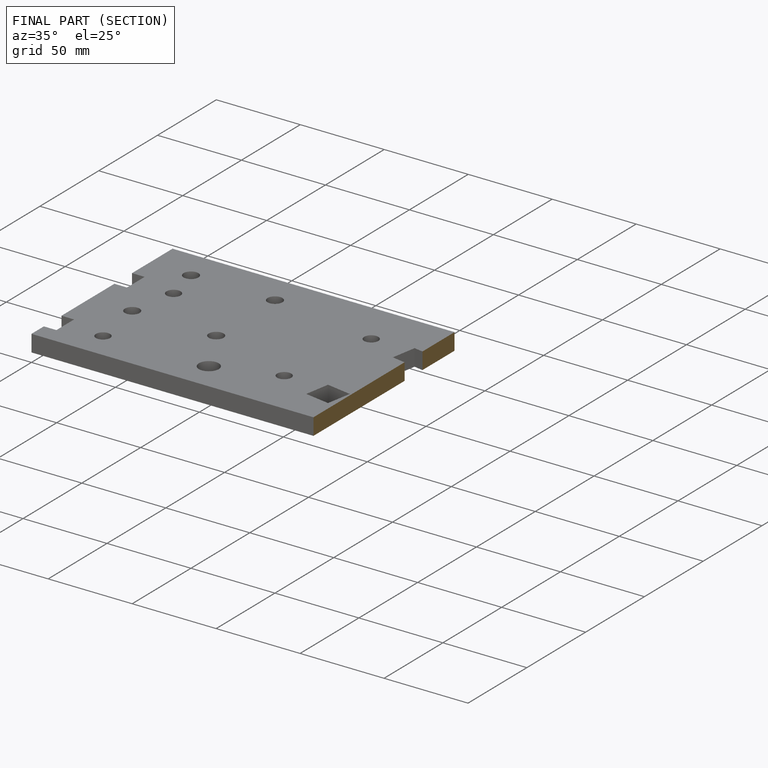
[diagram: finished part — half-section view (interior)]
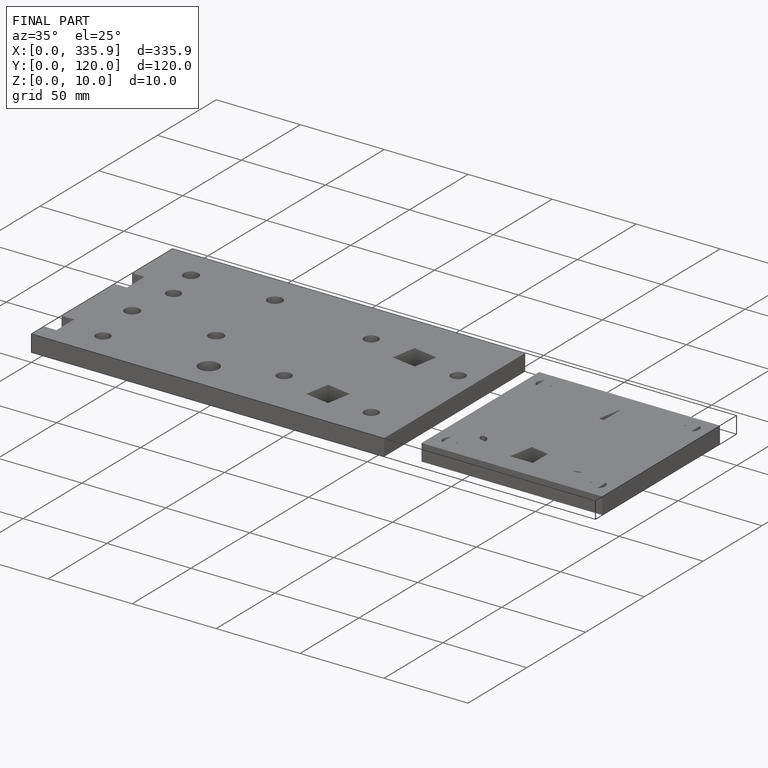
[diagram: finished part — iso view with bounding-box wireframe]
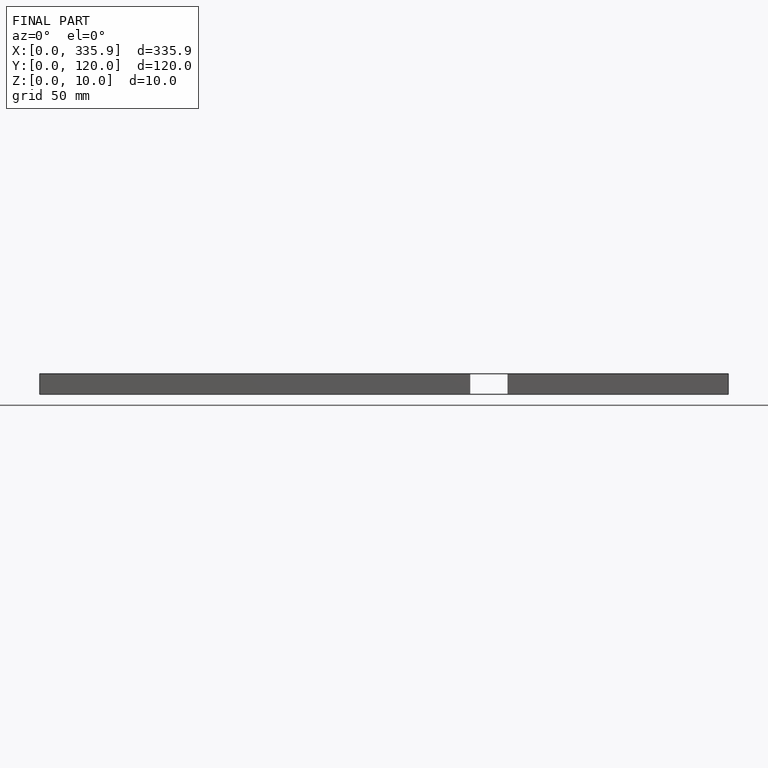
[diagram: finished part — front view with bounding-box wireframe]
